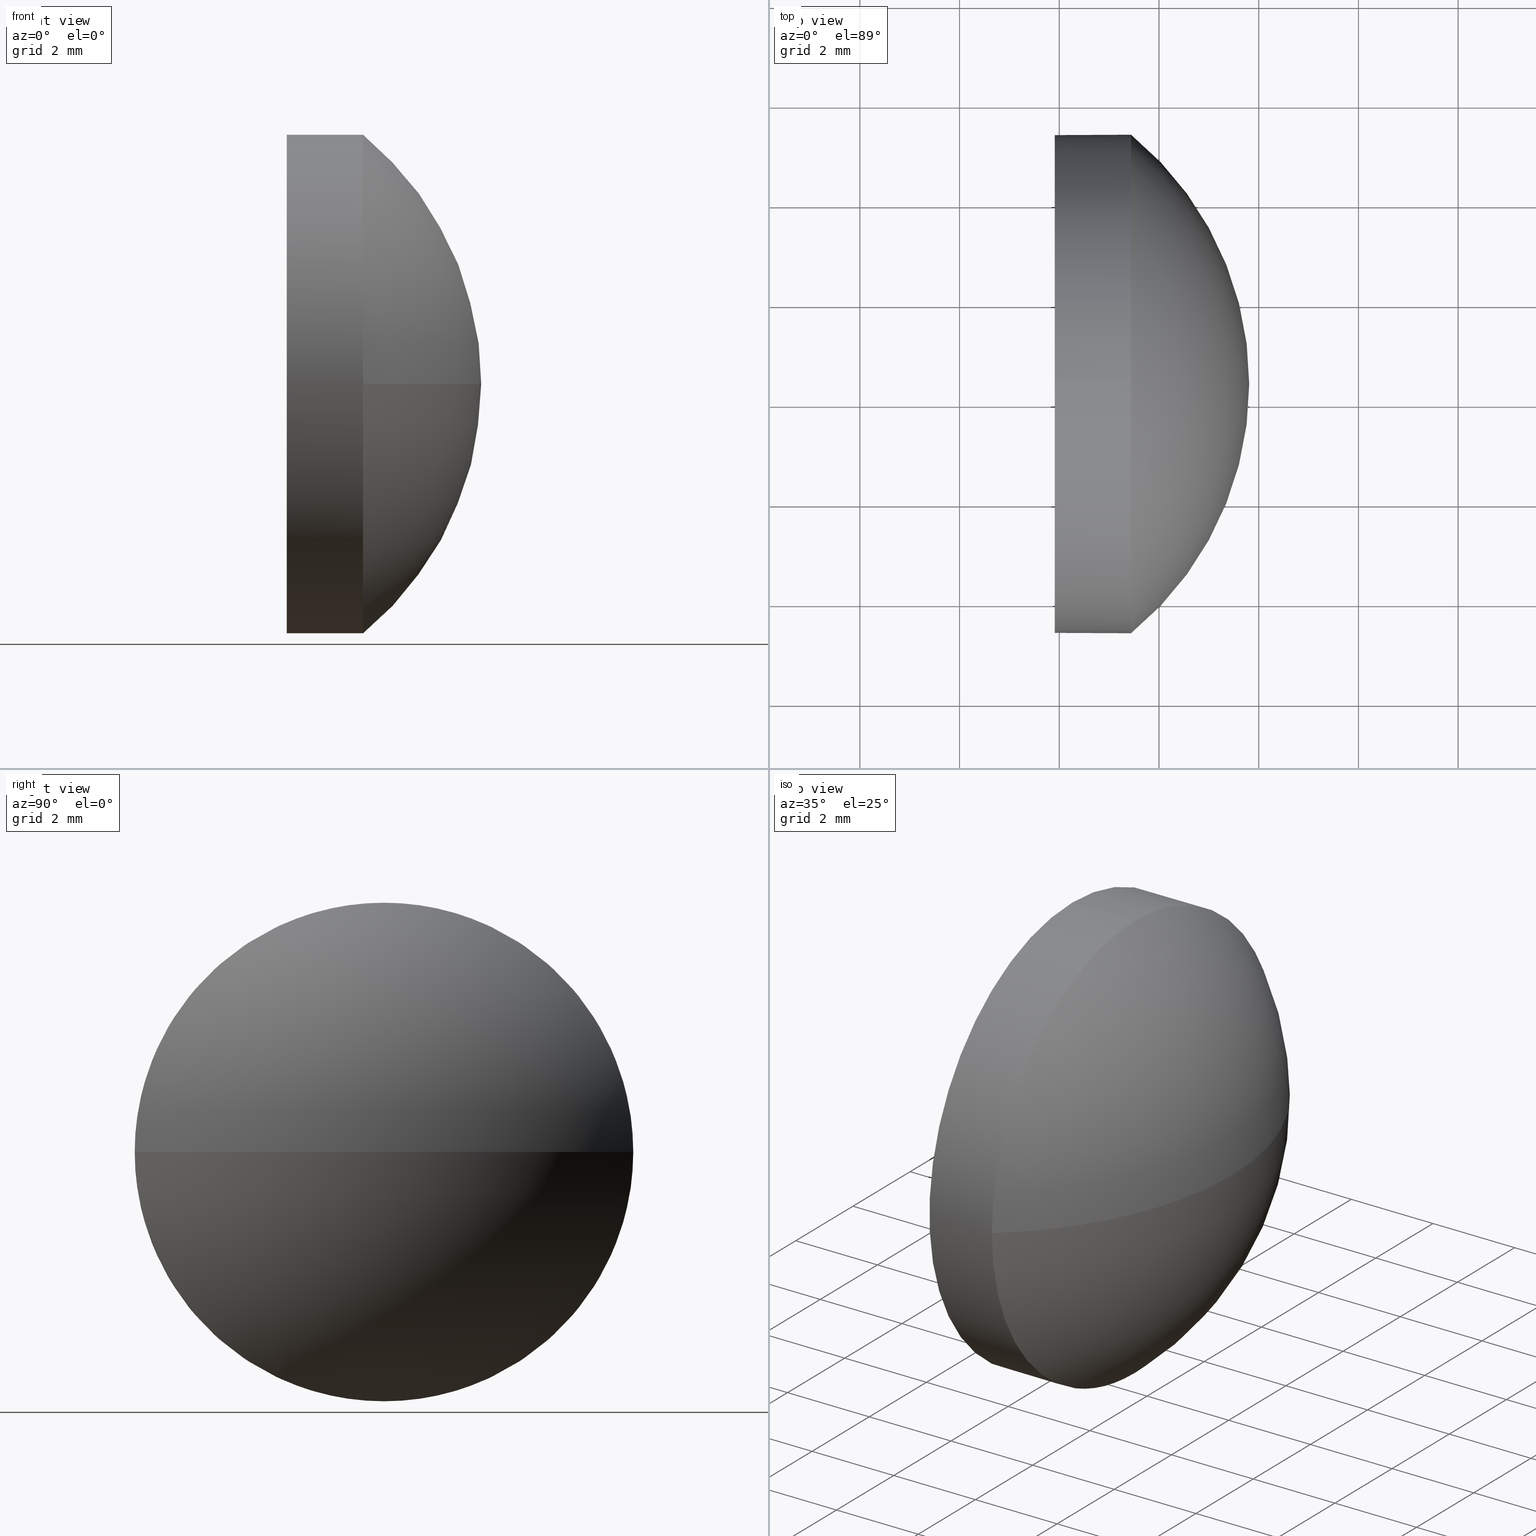
[diagram: canonical four-view strip — front | top / right | iso, engineering-drawing reading convention]
A machine part, canonical four-view strip (front | top / right | iso — engineering-drawing reading convention). The complete STEP part file that produces these views, byte-faithful:
ISO-10303-21;
HEADER;
FILE_DESCRIPTION (( 'STEP AP214' ),
    '1' );
FILE_NAME ('100014.STEP',
    '2019-04-19T07:01:03',
    ( '' ),
    ( '' ),
    'SwSTEP 2.0',
    'SolidWorks 2016',
    '' );
FILE_SCHEMA (( 'AUTOMOTIVE_DESIGN' ));
ENDSEC;

DATA;
#1 = EDGE_CURVE ( 'NONE', #12, #63, #51, .T. ) ;
#2 = ORIENTED_EDGE ( 'NONE', *, *, #145, .F. ) ;
#3 = APPLICATION_CONTEXT ( 'automotive_design' ) ;
#4 = DIRECTION ( 'NONE',  ( -1.000000000000000000, -0.0000000000000000000, -0.0000000000000000000 ) ) ;
#5 = SPHERICAL_SURFACE ( 'NONE', #159, 6.459261603375520800 ) ;
#6 = DIRECTION ( 'NONE',  ( -1.000000000000000000, -0.0000000000000000000, -0.0000000000000000000 ) ) ;
#7 = CARTESIAN_POINT ( 'NONE',  ( 535.9096273029953200, 134.3762019213367000, -5.000000000000004400 ) ) ;
#8 = CARTESIAN_POINT ( 'NONE',  ( 537.4396273029952900, 129.3762019213367000, -6.123233995736764300E-016 ) ) ;
#9 = ORIENTED_EDGE ( 'NONE', *, *, #145, .T. ) ;
#10 = AXIS2_PLACEMENT_3D ( 'NONE', #184, #119, #65 ) ;
#11 = CIRCLE ( 'NONE', #147, 6.459261603375510100 ) ;
#12 = VERTEX_POINT ( 'NONE', #8 ) ;
#13 = PRESENTATION_STYLE_ASSIGNMENT (( #66 ) ) ;
#14 = APPLICATION_CONTEXT ( 'automotive_design' ) ;
#15 = FILL_AREA_STYLE ('',( #64 ) ) ;
#16 = FILL_AREA_STYLE ('',( #132 ) ) ;
#17 = DIRECTION ( 'NONE',  ( 0.0000000000000000000, 0.0000000000000000000, 1.000000000000000000 ) ) ;
#18 = DIRECTION ( 'NONE',  ( 0.0000000000000000000, 1.224646799147353200E-016, -1.000000000000000000 ) ) ;
#19 = VERTEX_POINT ( 'NONE', #22 ) ;
#20 = STYLED_ITEM ( 'NONE', ( #13 ), #113 ) ;
#21 = ORIENTED_EDGE ( 'NONE', *, *, #24, .T. ) ;
#22 = CARTESIAN_POINT ( 'NONE',  ( 537.4396273029952900, 139.3762019213367000, 0.0000000000000000000 ) ) ;
#23 = DIRECTION ( 'NONE',  ( 0.0000000000000000000, 1.000000000000000000, 0.0000000000000000000 ) ) ;
#24 = EDGE_CURVE ( 'NONE', #139, #36, #82, .T. ) ;
#25 = EDGE_LOOP ( 'NONE', ( #54, #9 ) ) ;
#26 = SURFACE_STYLE_FILL_AREA ( #16 ) ;
#27 = AXIS2_PLACEMENT_3D ( 'NONE', #129, #142, #52 ) ;
#28 = CIRCLE ( 'NONE', #10, 6.459261603375510100 ) ;
#29 = APPLICATION_PROTOCOL_DEFINITION ( 'draft international standard', 'automotive_design', 1998, #14 ) ;
#30 = CARTESIAN_POINT ( 'NONE',  ( 534.6781067289280100, 134.3762019213367000, 0.0000000000000000000 ) ) ;
#31 = APPLICATION_PROTOCOL_DEFINITION ( 'draft international standard', 'automotive_design', 1998, #3 ) ;
#32 = SURFACE_STYLE_FILL_AREA ( #15 ) ;
#33 = ORIENTED_EDGE ( 'NONE', *, *, #61, .F. ) ;
#34 = AXIS2_PLACEMENT_3D ( 'NONE', #166, #41, #118 ) ;
#35 = SURFACE_SIDE_STYLE ('',( #26 ) ) ;
#36 = VERTEX_POINT ( 'NONE', #7 ) ;
#37 = AXIS2_PLACEMENT_3D ( 'NONE', #127, #17, #62 ) ;
#38 = DIRECTION ( 'NONE',  ( 0.0000000000000000000, 0.0000000000000000000, -1.000000000000000000 ) ) ;
#39 = DIRECTION ( 'NONE',  ( -1.000000000000000000, -0.0000000000000000000, -0.0000000000000000000 ) ) ;
#40 = CYLINDRICAL_SURFACE ( 'NONE', #141, 5.000000000000004400 ) ;
#41 = DIRECTION ( 'NONE',  ( -1.000000000000000000, -0.0000000000000000000, -0.0000000000000000000 ) ) ;
#42 = PRESENTATION_STYLE_ASSIGNMENT (( #125 ) ) ;
#43 = CARTESIAN_POINT ( 'NONE',  ( 537.4396273029952900, 134.3762019213367000, 0.0000000000000000000 ) ) ;
#44 = DIRECTION ( 'NONE',  ( -1.000000000000000000, -0.0000000000000000000, -0.0000000000000000000 ) ) ;
#45 = EDGE_CURVE ( 'NONE', #19, #139, #186, .T. ) ;
#46 = ORIENTED_EDGE ( 'NONE', *, *, #61, .T. ) ;
#47 = ADVANCED_FACE ( 'NONE', ( #160 ), #128, .F. ) ;
#48 = SPHERICAL_SURFACE ( 'NONE', #27, 6.459261603375520800 ) ;
#49 = AXIS2_PLACEMENT_3D ( 'NONE', #178, #6, #111 ) ;
#50 = UNCERTAINTY_MEASURE_WITH_UNIT (LENGTH_MEASURE( 1.000000000000000100E-005 ), #94, 'distance_accuracy_value', 'NONE');
#51 = CIRCLE ( 'NONE', #34, 5.000000000000004400 ) ;
#52 = DIRECTION ( 'NONE',  ( 0.0000000000000000000, 1.000000000000000000, 0.0000000000000000000 ) ) ;
#53 = CARTESIAN_POINT ( 'NONE',  ( 535.9096273029953200, 134.3762019213367000, 0.0000000000000000000 ) ) ;
#54 = ORIENTED_EDGE ( 'NONE', *, *, #153, .T. ) ;
#55 = ADVANCED_FACE ( 'NONE', ( #131 ), #48, .T. ) ;
#56 = ORIENTED_EDGE ( 'NONE', *, *, #134, .F. ) ;
#57 = AXIS2_PLACEMENT_3D ( 'NONE', #95, #126, #164 ) ;
#58 = ADVANCED_FACE ( 'NONE', ( #70 ), #5, .T. ) ;
#59 = FACE_OUTER_BOUND ( 'NONE', #143, .T. ) ;
#60 = EDGE_LOOP ( 'NONE', ( #99, #146, #33, #77 ) ) ;
#61 = EDGE_CURVE ( 'NONE', #139, #12, #106, .T. ) ;
#62 = DIRECTION ( 'NONE',  ( 1.000000000000000000, 0.0000000000000000000, 0.0000000000000000000 ) ) ;
#63 = VERTEX_POINT ( 'NONE', #71 ) ;
#64 = FILL_AREA_STYLE_COLOUR ( '', #105 ) ;
#65 = DIRECTION ( 'NONE',  ( 1.000000000000000000, 0.0000000000000000000, 0.0000000000000000000 ) ) ;
#66 = SURFACE_STYLE_USAGE ( .BOTH. , #35 ) ;
#67 = ORIENTED_EDGE ( 'NONE', *, *, #1, .T. ) ;
#68 = CARTESIAN_POINT ( 'NONE',  ( 534.6781067289280100, 134.3762019213367000, -5.000000000000004400 ) ) ;
#69 =( GEOMETRIC_REPRESENTATION_CONTEXT ( 3 ) GLOBAL_UNCERTAINTY_ASSIGNED_CONTEXT ( ( #116 ) ) GLOBAL_UNIT_ASSIGNED_CONTEXT ( ( #162, #78, #177 ) ) REPRESENTATION_CONTEXT ( 'NONE', 'WORKASPACE' ) );
#70 = FACE_OUTER_BOUND ( 'NONE', #60, .T. ) ;
#71 = CARTESIAN_POINT ( 'NONE',  ( 537.4396273029952900, 134.3762019213367000, 5.000000000000004400 ) ) ;
#72 = PRODUCT ( '100014', '100014', '', ( #110 ) ) ;
#73 = AXIS2_PLACEMENT_3D ( 'NONE', #53, #156, #38 ) ;
#74 = LINE ( 'NONE', #157, #107 ) ;
#75 =( GEOMETRIC_REPRESENTATION_CONTEXT ( 3 ) GLOBAL_UNCERTAINTY_ASSIGNED_CONTEXT ( ( #121 ) ) GLOBAL_UNIT_ASSIGNED_CONTEXT ( ( #81, #154, #165 ) ) REPRESENTATION_CONTEXT ( 'NONE', 'WORKASPACE' ) );
#76 = ORIENTED_EDGE ( 'NONE', *, *, #79, .F. ) ;
#77 = ORIENTED_EDGE ( 'NONE', *, *, #45, .F. ) ;
#78 =( NAMED_UNIT ( * ) PLANE_ANGLE_UNIT ( ) SI_UNIT ( $, .RADIAN. ) );
#79 = EDGE_CURVE ( 'NONE', #63, #90, #74, .T. ) ;
#80 = DIRECTION ( 'NONE',  ( 0.0000000000000000000, 1.000000000000000000, 1.224646799147355200E-016 ) ) ;
#81 =( LENGTH_UNIT ( ) NAMED_UNIT ( * ) SI_UNIT ( .MILLI., .METRE. ) );
#82 = LINE ( 'NONE', #68, #175 ) ;
#83 = AXIS2_PLACEMENT_3D ( 'NONE', #43, #44, #91 ) ;
#84 = DIRECTION ( 'NONE',  ( -1.000000000000000000, -0.0000000000000000000, -0.0000000000000000000 ) ) ;
#85 = STYLED_ITEM ( 'NONE', ( #42 ), #98 ) ;
#86 = FACE_OUTER_BOUND ( 'NONE', #114, .T. ) ;
#87 = DIRECTION ( 'NONE',  ( -1.000000000000000000, -0.0000000000000000000, -0.0000000000000000000 ) ) ;
#88 = DIRECTION ( 'NONE',  ( 0.0000000000000000000, 0.0000000000000000000, 1.000000000000000000 ) ) ;
#89 = CYLINDRICAL_SURFACE ( 'NONE', #123, 5.000000000000004400 ) ;
#90 = VERTEX_POINT ( 'NONE', #101 ) ;
#91 = DIRECTION ( 'NONE',  ( 0.0000000000000000000, 0.0000000000000000000, 1.000000000000000000 ) ) ;
#92 = AXIS2_PLACEMENT_3D ( 'NONE', #140, #84, #167 ) ;
#93 = ORIENTED_EDGE ( 'NONE', *, *, #45, .T. ) ;
#94 =( LENGTH_UNIT ( ) NAMED_UNIT ( * ) SI_UNIT ( .MILLI., .METRE. ) );
#95 = CARTESIAN_POINT ( 'NONE',  ( 535.9096273029953200, 134.3762019213367000, 0.0000000000000000000 ) ) ;
#96 = ORIENTED_EDGE ( 'NONE', *, *, #79, .T. ) ;
#97 = DIRECTION ( 'NONE',  ( -1.000000000000000000, -0.0000000000000000000, -0.0000000000000000000 ) ) ;
#98 = ADVANCED_BREP_SHAPE_REPRESENTATION ( '100014', ( #113, #37 ), #138 ) ;
#99 = ORIENTED_EDGE ( 'NONE', *, *, #104, .F. ) ;
#100 = PRODUCT_DEFINITION_FORMATION_WITH_SPECIFIED_SOURCE ( '�κ�', '', #72, .NOT_KNOWN. ) ;
#101 = CARTESIAN_POINT ( 'NONE',  ( 535.9096273029953200, 134.3762019213367000, 5.000000000000004400 ) ) ;
#102 = ORIENTED_EDGE ( 'NONE', *, *, #103, .F. ) ;
#103 = EDGE_CURVE ( 'NONE', #63, #19, #181, .T. ) ;
#104 = EDGE_CURVE ( 'NONE', #122, #19, #28, .T. ) ;
#105 = COLOUR_RGB ( '',1.000000000000000000, 1.000000000000000000, 1.000000000000000000 ) ;
#106 = CIRCLE ( 'NONE', #83, 5.000000000000004400 ) ;
#107 = VECTOR ( 'NONE', #87, 1000.000000000000000 ) ;
#108 =( NAMED_UNIT ( * ) PLANE_ANGLE_UNIT ( ) SI_UNIT ( $, .RADIAN. ) );
#109 = ORIENTED_EDGE ( 'NONE', *, *, #24, .F. ) ;
#110 = PRODUCT_CONTEXT ( 'NONE', #3, 'mechanical' ) ;
#111 = DIRECTION ( 'NONE',  ( 0.0000000000000000000, 0.0000000000000000000, 1.000000000000000000 ) ) ;
#112 = PRESENTATION_LAYER_ASSIGNMENT (  '', '', ( #20 ) ) ;
#113 = MANIFOLD_SOLID_BREP ( '��ת1', #155 ) ;
#114 = EDGE_LOOP ( 'NONE', ( #109, #46, #67, #96, #2 ) ) ;
#115 = MECHANICAL_DESIGN_GEOMETRIC_PRESENTATION_REPRESENTATION (  '', ( #20 ), #75 ) ;
#116 = UNCERTAINTY_MEASURE_WITH_UNIT (LENGTH_MEASURE( 1.000000000000000100E-005 ), #162, 'distance_accuracy_value', 'NONE');
#117 = CIRCLE ( 'NONE', #57, 5.000000000000004400 ) ;
#118 = DIRECTION ( 'NONE',  ( 0.0000000000000000000, 0.0000000000000000000, 1.000000000000000000 ) ) ;
#119 = DIRECTION ( 'NONE',  ( -0.0000000000000000000, 0.0000000000000000000, 1.000000000000000000 ) ) ;
#120 = ORIENTED_EDGE ( 'NONE', *, *, #104, .T. ) ;
#121 = UNCERTAINTY_MEASURE_WITH_UNIT (LENGTH_MEASURE( 1.000000000000000100E-005 ), #81, 'distance_accuracy_value', 'NONE');
#122 = VERTEX_POINT ( 'NONE', #183 ) ;
#123 = AXIS2_PLACEMENT_3D ( 'NONE', #30, #4, #136 ) ;
#124 = SURFACE_SIDE_STYLE ('',( #32 ) ) ;
#125 = SURFACE_STYLE_USAGE ( .BOTH. , #124 ) ;
#126 = DIRECTION ( 'NONE',  ( -1.000000000000000000, -0.0000000000000000000, -0.0000000000000000000 ) ) ;
#127 = CARTESIAN_POINT ( 'NONE',  ( 0.0000000000000000000, 0.0000000000000000000, 0.0000000000000000000 ) ) ;
#128 = PLANE ( 'NONE',  #73 ) ;
#129 = CARTESIAN_POINT ( 'NONE',  ( 533.3503656996198300, 134.3762019213367000, 0.0000000000000000000 ) ) ;
#130 = SHAPE_DEFINITION_REPRESENTATION ( #161, #98 ) ;
#131 = FACE_OUTER_BOUND ( 'NONE', #149, .T. ) ;
#132 = FILL_AREA_STYLE_COLOUR ( '', #150 ) ;
#133 = PRODUCT_RELATED_PRODUCT_CATEGORY ( 'part', '', ( #72 ) ) ;
#134 = EDGE_CURVE ( 'NONE', #122, #12, #11, .T. ) ;
#135 = PRODUCT_DEFINITION_CONTEXT ( 'detailed design', #14, 'design' ) ;
#136 = DIRECTION ( 'NONE',  ( 0.0000000000000000000, 0.0000000000000000000, 1.000000000000000000 ) ) ;
#137 = DIRECTION ( 'NONE',  ( 0.0000000000000000000, 0.0000000000000000000, 1.000000000000000000 ) ) ;
#138 =( GEOMETRIC_REPRESENTATION_CONTEXT ( 3 ) GLOBAL_UNCERTAINTY_ASSIGNED_CONTEXT ( ( #50 ) ) GLOBAL_UNIT_ASSIGNED_CONTEXT ( ( #94, #108, #176 ) ) REPRESENTATION_CONTEXT ( 'NONE', 'WORKASPACE' ) );
#139 = VERTEX_POINT ( 'NONE', #152 ) ;
#140 = CARTESIAN_POINT ( 'NONE',  ( 537.4396273029952900, 134.3762019213367000, 0.0000000000000000000 ) ) ;
#141 = AXIS2_PLACEMENT_3D ( 'NONE', #179, #97, #137 ) ;
#142 = DIRECTION ( 'NONE',  ( -0.0000000000000000000, 0.0000000000000000000, -1.000000000000000000 ) ) ;
#143 = EDGE_LOOP ( 'NONE', ( #93, #21, #174, #76, #171 ) ) ;
#144 = CARTESIAN_POINT ( 'NONE',  ( 533.3503656996198300, 134.3762019213367000, 0.0000000000000000000 ) ) ;
#145 = EDGE_CURVE ( 'NONE', #36, #90, #117, .T. ) ;
#146 = ORIENTED_EDGE ( 'NONE', *, *, #134, .T. ) ;
#147 = AXIS2_PLACEMENT_3D ( 'NONE', #163, #18, #80 ) ;
#148 = CIRCLE ( 'NONE', #49, 5.000000000000004400 ) ;
#149 = EDGE_LOOP ( 'NONE', ( #56, #120, #102, #182 ) ) ;
#150 = COLOUR_RGB ( '',1.000000000000000000, 1.000000000000000000, 1.000000000000000000 ) ;
#151 = PRESENTATION_LAYER_ASSIGNMENT (  '', '', ( #85 ) ) ;
#152 = CARTESIAN_POINT ( 'NONE',  ( 537.4396273029952900, 134.3762019213367000, -5.000000000000004400 ) ) ;
#153 = EDGE_CURVE ( 'NONE', #90, #36, #148, .T. ) ;
#154 =( NAMED_UNIT ( * ) PLANE_ANGLE_UNIT ( ) SI_UNIT ( $, .RADIAN. ) );
#155 = CLOSED_SHELL ( 'NONE', ( #185, #58, #55, #173, #47 ) ) ;
#156 = DIRECTION ( 'NONE',  ( 1.000000000000000000, 0.0000000000000000000, 0.0000000000000000000 ) ) ;
#157 = CARTESIAN_POINT ( 'NONE',  ( 534.6781067289280100, 134.3762019213367000, 5.000000000000004400 ) ) ;
#158 = CARTESIAN_POINT ( 'NONE',  ( 537.4396273029952900, 134.3762019213367000, 0.0000000000000000000 ) ) ;
#159 = AXIS2_PLACEMENT_3D ( 'NONE', #144, #169, #23 ) ;
#160 = FACE_OUTER_BOUND ( 'NONE', #25, .T. ) ;
#161 = PRODUCT_DEFINITION_SHAPE ( 'NONE', 'NONE',  #172 ) ;
#162 =( LENGTH_UNIT ( ) NAMED_UNIT ( * ) SI_UNIT ( .MILLI., .METRE. ) );
#163 = CARTESIAN_POINT ( 'NONE',  ( 533.3503656996198300, 134.3762019213367000, 0.0000000000000000000 ) ) ;
#164 = DIRECTION ( 'NONE',  ( 0.0000000000000000000, 0.0000000000000000000, 1.000000000000000000 ) ) ;
#165 =( NAMED_UNIT ( * ) SI_UNIT ( $, .STERADIAN. ) SOLID_ANGLE_UNIT ( ) );
#166 = CARTESIAN_POINT ( 'NONE',  ( 537.4396273029952900, 134.3762019213367000, 0.0000000000000000000 ) ) ;
#167 = DIRECTION ( 'NONE',  ( 0.0000000000000000000, 0.0000000000000000000, 1.000000000000000000 ) ) ;
#168 = MECHANICAL_DESIGN_GEOMETRIC_PRESENTATION_REPRESENTATION (  '', ( #85 ), #69 ) ;
#169 = DIRECTION ( 'NONE',  ( -0.0000000000000000000, 0.0000000000000000000, -1.000000000000000000 ) ) ;
#170 = DIRECTION ( 'NONE',  ( -1.000000000000000000, -0.0000000000000000000, -0.0000000000000000000 ) ) ;
#171 = ORIENTED_EDGE ( 'NONE', *, *, #103, .T. ) ;
#172 = PRODUCT_DEFINITION ( 'δ֪', '', #100, #135 ) ;
#173 = ADVANCED_FACE ( 'NONE', ( #86 ), #40, .T. ) ;
#174 = ORIENTED_EDGE ( 'NONE', *, *, #153, .F. ) ;
#175 = VECTOR ( 'NONE', #39, 1000.000000000000000 ) ;
#176 =( NAMED_UNIT ( * ) SI_UNIT ( $, .STERADIAN. ) SOLID_ANGLE_UNIT ( ) );
#177 =( NAMED_UNIT ( * ) SI_UNIT ( $, .STERADIAN. ) SOLID_ANGLE_UNIT ( ) );
#178 = CARTESIAN_POINT ( 'NONE',  ( 535.9096273029953200, 134.3762019213367000, 0.0000000000000000000 ) ) ;
#179 = CARTESIAN_POINT ( 'NONE',  ( 534.6781067289280100, 134.3762019213367000, 0.0000000000000000000 ) ) ;
#180 = AXIS2_PLACEMENT_3D ( 'NONE', #158, #170, #88 ) ;
#181 = CIRCLE ( 'NONE', #180, 5.000000000000004400 ) ;
#182 = ORIENTED_EDGE ( 'NONE', *, *, #1, .F. ) ;
#183 = CARTESIAN_POINT ( 'NONE',  ( 539.8096273029953000, 134.3762019213367000, 0.0000000000000000000 ) ) ;
#184 = CARTESIAN_POINT ( 'NONE',  ( 533.3503656996198300, 134.3762019213367000, 0.0000000000000000000 ) ) ;
#185 = ADVANCED_FACE ( 'NONE', ( #59 ), #89, .T. ) ;
#186 = CIRCLE ( 'NONE', #92, 5.000000000000004400 ) ;
ENDSEC;
END-ISO-10303-21;
